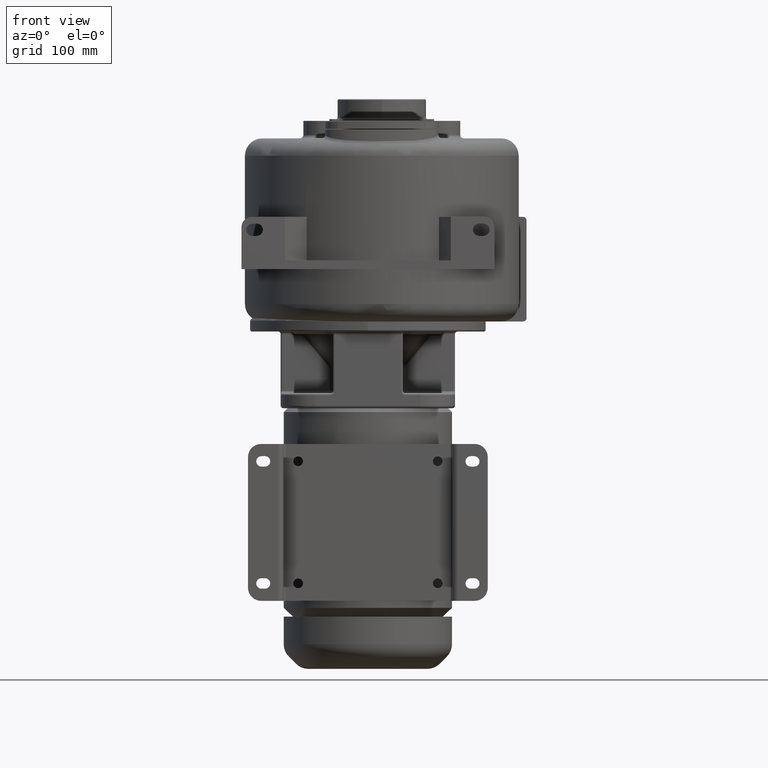
[diagram: clean part render]
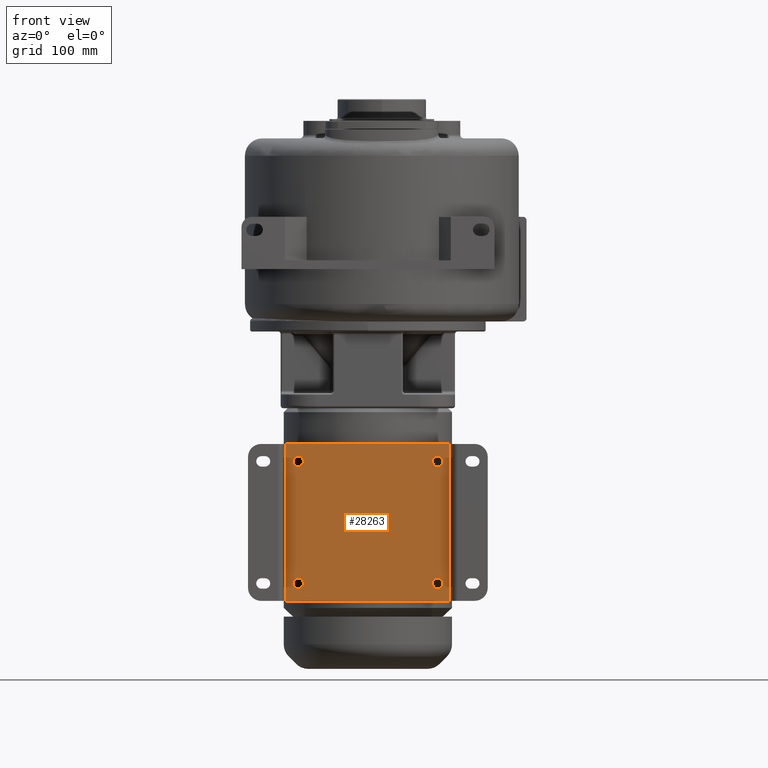
[diagram: same view with one face highlighted and labeled with its STEP entity id]
A machine part, front view. The second image highlights one B-rep face of the part: STEP entity #28263.
In plain terms, the highlighted planar face has unit normal (0, 1, 0).
Its self-contained STEP definition (entity closure, byte-faithful):
#10715=DIRECTION('',(-1.E0,0.E0,0.E0));
#10716=VECTOR('',#10715,1.88E2);
#10717=CARTESIAN_POINT('',(9.4E1,-1.03E2,-4.3E1));
#10718=LINE('',#10717,#10716);
#10833=DIRECTION('',(0.E0,0.E0,1.E0));
#10834=VECTOR('',#10833,1.8E2);
#10835=CARTESIAN_POINT('',(9.4E1,-1.03E2,-2.23E2));
#10836=LINE('',#10835,#10834);
#10837=CARTESIAN_POINT('',(8.E1,-1.03E2,-6.3E1));
#10838=DIRECTION('',(0.E0,1.E0,0.E0));
#10839=DIRECTION('',(0.E0,0.E0,1.E0));
#10840=AXIS2_PLACEMENT_3D('',#10837,#10838,#10839);
#10842=CARTESIAN_POINT('',(8.E1,-1.03E2,-6.3E1));
#10843=DIRECTION('',(0.E0,1.E0,0.E0));
#10844=DIRECTION('',(0.E0,0.E0,-1.E0));
#10845=AXIS2_PLACEMENT_3D('',#10842,#10843,#10844);
#10847=CARTESIAN_POINT('',(-8.E1,-1.03E2,-6.3E1));
#10848=DIRECTION('',(0.E0,1.E0,0.E0));
#10849=DIRECTION('',(0.E0,0.E0,1.E0));
#10850=AXIS2_PLACEMENT_3D('',#10847,#10848,#10849);
#10852=CARTESIAN_POINT('',(-8.E1,-1.03E2,-6.3E1));
#10853=DIRECTION('',(0.E0,1.E0,0.E0));
#10854=DIRECTION('',(0.E0,0.E0,-1.E0));
#10855=AXIS2_PLACEMENT_3D('',#10852,#10853,#10854);
#10857=CARTESIAN_POINT('',(8.E1,-1.03E2,-2.03E2));
#10858=DIRECTION('',(0.E0,1.E0,0.E0));
#10859=DIRECTION('',(0.E0,0.E0,1.E0));
#10860=AXIS2_PLACEMENT_3D('',#10857,#10858,#10859);
#10862=CARTESIAN_POINT('',(8.E1,-1.03E2,-2.03E2));
#10863=DIRECTION('',(0.E0,1.E0,0.E0));
#10864=DIRECTION('',(0.E0,0.E0,-1.E0));
#10865=AXIS2_PLACEMENT_3D('',#10862,#10863,#10864);
#10867=CARTESIAN_POINT('',(-8.E1,-1.03E2,-2.03E2));
#10868=DIRECTION('',(0.E0,1.E0,0.E0));
#10869=DIRECTION('',(0.E0,0.E0,1.E0));
#10870=AXIS2_PLACEMENT_3D('',#10867,#10868,#10869);
#10872=CARTESIAN_POINT('',(-8.E1,-1.03E2,-2.03E2));
#10873=DIRECTION('',(0.E0,1.E0,0.E0));
#10874=DIRECTION('',(0.E0,0.E0,-1.E0));
#10875=AXIS2_PLACEMENT_3D('',#10872,#10873,#10874);
#10885=DIRECTION('',(-1.E0,0.E0,0.E0));
#10886=VECTOR('',#10885,1.88E2);
#10887=CARTESIAN_POINT('',(9.4E1,-1.03E2,-2.23E2));
#10888=LINE('',#10887,#10886);
#11147=DIRECTION('',(0.E0,0.E0,1.E0));
#11148=VECTOR('',#11147,1.8E2);
#11149=CARTESIAN_POINT('',(-9.4E1,-1.03E2,-2.23E2));
#11150=LINE('',#11149,#11148);
#12783=CARTESIAN_POINT('',(9.4E1,-1.03E2,-2.23E2));
#12784=VERTEX_POINT('',#12783);
#12785=CARTESIAN_POINT('',(-9.4E1,-1.03E2,-2.23E2));
#12786=VERTEX_POINT('',#12785);
#12799=CARTESIAN_POINT('',(9.4E1,-1.03E2,-4.3E1));
#12800=VERTEX_POINT('',#12799);
#12801=CARTESIAN_POINT('',(-9.4E1,-1.03E2,-4.3E1));
#12802=VERTEX_POINT('',#12801);
#12857=CARTESIAN_POINT('',(-8.E1,-1.03E2,-1.97E2));
#12858=CARTESIAN_POINT('',(-8.E1,-1.03E2,-2.09E2));
#12859=VERTEX_POINT('',#12857);
#12860=VERTEX_POINT('',#12858);
#12861=CARTESIAN_POINT('',(8.E1,-1.03E2,-1.97E2));
#12862=CARTESIAN_POINT('',(8.E1,-1.03E2,-2.09E2));
#12863=VERTEX_POINT('',#12861);
#12864=VERTEX_POINT('',#12862);
#12865=CARTESIAN_POINT('',(-8.E1,-1.03E2,-5.7E1));
#12866=CARTESIAN_POINT('',(-8.E1,-1.03E2,-6.9E1));
#12867=VERTEX_POINT('',#12865);
#12868=VERTEX_POINT('',#12866);
#12869=CARTESIAN_POINT('',(8.E1,-1.03E2,-5.7E1));
#12870=CARTESIAN_POINT('',(8.E1,-1.03E2,-6.9E1));
#12871=VERTEX_POINT('',#12869);
#12872=VERTEX_POINT('',#12870);
#28227=CARTESIAN_POINT('',(9.4E1,-1.03E2,-2.23E2));
#28228=DIRECTION('',(0.E0,1.E0,0.E0));
#28229=DIRECTION('',(-1.E0,0.E0,0.E0));
#28230=AXIS2_PLACEMENT_3D('',#28227,#28228,#28229);
#28231=PLANE('',#28230);
#28233=ORIENTED_EDGE('',*,*,#28232,.T.);
#28235=ORIENTED_EDGE('',*,*,#28234,.T.);
#28236=ORIENTED_EDGE('',*,*,#28061,.F.);
#28238=ORIENTED_EDGE('',*,*,#28237,.F.);
#28239=EDGE_LOOP('',(#28233,#28235,#28236,#28238));
#28240=FACE_OUTER_BOUND('',#28239,.F.);
#28241=ORIENTED_EDGE('',*,*,#28207,.F.);
#28242=ORIENTED_EDGE('',*,*,#28221,.F.);
#28243=EDGE_LOOP('',(#28241,#28242));
#28244=FACE_BOUND('',#28243,.F.);
#28246=ORIENTED_EDGE('',*,*,#28245,.F.);
#28248=ORIENTED_EDGE('',*,*,#28247,.F.);
#28249=EDGE_LOOP('',(#28246,#28248));
#28250=FACE_BOUND('',#28249,.F.);
#28252=ORIENTED_EDGE('',*,*,#28251,.F.);
#28254=ORIENTED_EDGE('',*,*,#28253,.F.);
#28255=EDGE_LOOP('',(#28252,#28254));
#28256=FACE_BOUND('',#28255,.F.);
#28258=ORIENTED_EDGE('',*,*,#28257,.F.);
#28260=ORIENTED_EDGE('',*,*,#28259,.F.);
#28261=EDGE_LOOP('',(#28258,#28260));
#28262=FACE_BOUND('',#28261,.F.);
#28263=ADVANCED_FACE('',(#28240,#28244,#28250,#28256,#28262),#28231,.F.);
#10841=CIRCLE('',#10840,6.E0);
#10846=CIRCLE('',#10845,6.E0);
#10851=CIRCLE('',#10850,6.E0);
#10856=CIRCLE('',#10855,6.E0);
#10861=CIRCLE('',#10860,6.E0);
#10866=CIRCLE('',#10865,6.E0);
#10871=CIRCLE('',#10870,6.E0);
#10876=CIRCLE('',#10875,6.E0);
#28061=EDGE_CURVE('',#12800,#12802,#10718,.T.);
#28207=EDGE_CURVE('',#12871,#12872,#10841,.T.);
#28221=EDGE_CURVE('',#12872,#12871,#10846,.T.);
#28232=EDGE_CURVE('',#12784,#12786,#10888,.T.);
#28234=EDGE_CURVE('',#12786,#12802,#11150,.T.);
#28237=EDGE_CURVE('',#12784,#12800,#10836,.T.);
#28245=EDGE_CURVE('',#12867,#12868,#10851,.T.);
#28247=EDGE_CURVE('',#12868,#12867,#10856,.T.);
#28251=EDGE_CURVE('',#12863,#12864,#10861,.T.);
#28253=EDGE_CURVE('',#12864,#12863,#10866,.T.);
#28257=EDGE_CURVE('',#12859,#12860,#10871,.T.);
#28259=EDGE_CURVE('',#12860,#12859,#10876,.T.);